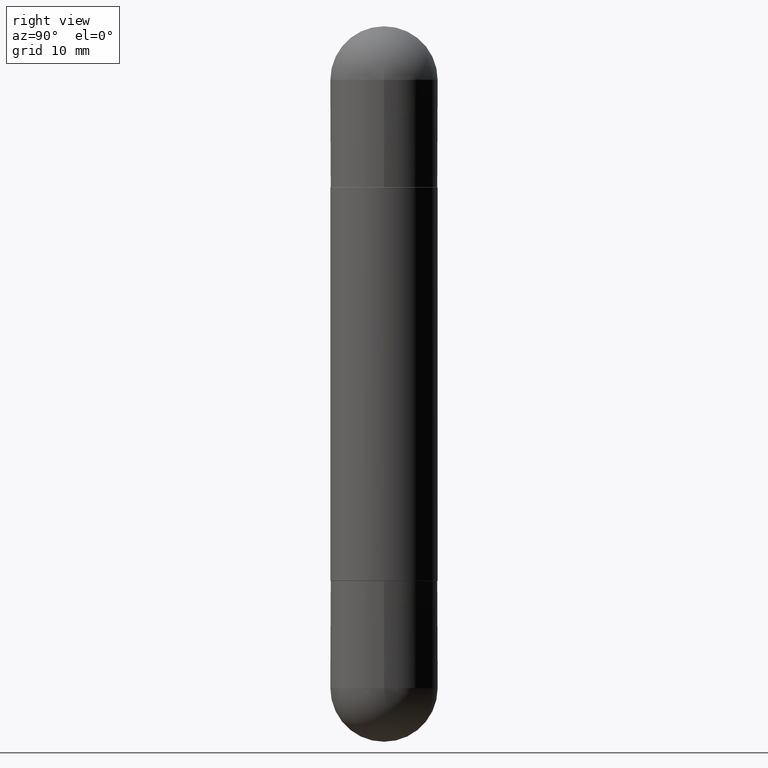
[diagram: clean part render]
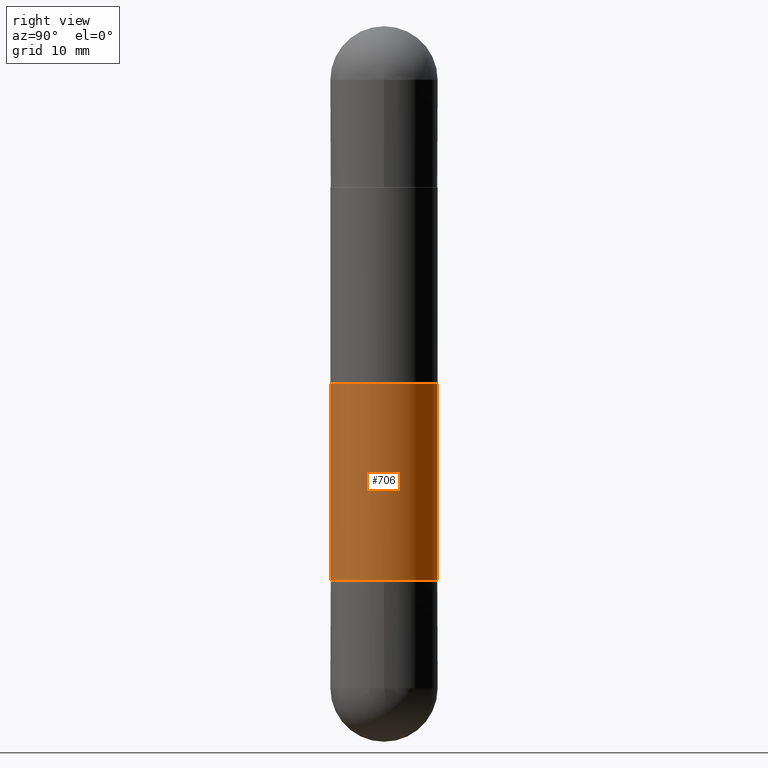
[diagram: same view with one face highlighted and labeled with its STEP entity id]
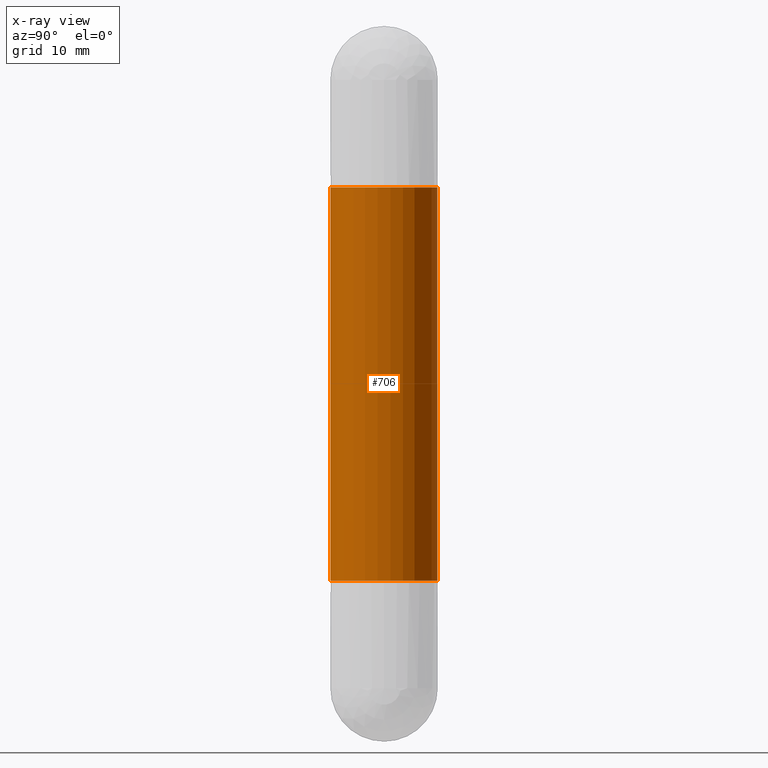
[diagram: x-ray of the same camera — body ghosted, the highlighted face saturated]
A machine part, right view. The second image highlights one B-rep face of the part: STEP entity #706.
The next image is the same camera in x-ray: the body ghosted, the highlighted face saturated — about 0% of this face is hidden behind the body in this view.
In plain terms, the highlighted cylindrical surface (partial cylindrical patch) has radius 4.7625 mm, axis along (-0, 0, -1).
Its self-contained STEP definition (entity closure, byte-faithful):
#68 = DIRECTION ( 'NONE',  ( -2.446135509155562374E-29, 3.490526582243119048E-15, -1.000000000000000000 ) ) ;
#99 = CARTESIAN_POINT ( 'NONE',  ( -1.309305502066128860E-15, -0.1875000000000069389, -0.5630000000000014992 ) ) ;
#188 = VERTEX_POINT ( 'NONE', #488 ) ;
#190 = DIRECTION ( 'NONE',  ( -2.446135509155562374E-29, 3.490526582243119048E-15, -1.000000000000000000 ) ) ;
#205 = AXIS2_PLACEMENT_3D ( 'NONE', #231, #603, #296 ) ;
#211 = ORIENTED_EDGE ( 'NONE', *, *, #542, .F. ) ;
#215 = CIRCLE ( 'NONE', #716, 0.1875000000000002220 ) ;
#231 = CARTESIAN_POINT ( 'NONE',  ( 4.738164481234324369E-29, -6.761149989804920839E-15, -1.936999999999999833 ) ) ;
#232 = EDGE_CURVE ( 'NONE', #577, #704, #215, .T. ) ;
#236 = DIRECTION ( 'NONE',  ( -2.446135509155562374E-29, 3.490526582243119048E-15, -1.000000000000000000 ) ) ;
#274 = ORIENTED_EDGE ( 'NONE', *, *, #680, .T. ) ;
#296 = DIRECTION ( 'NONE',  ( -6.982962677686265922E-15, -1.000000000000000000, 2.913971193241877216E-15 ) ) ;
#312 = CARTESIAN_POINT ( 'NONE',  ( 1.286343374582210880E-15, 0.1874999999999935052, -0.5630000000000001670 ) ) ;
#370 = CIRCLE ( 'NONE', #205, 0.1875000000000002220 ) ;
#382 = VECTOR ( 'NONE', #190, 39.37007874015748143 ) ;
#426 = CARTESIAN_POINT ( 'NONE',  ( 0.000000000000000000, 0.000000000000000000, -2.500000000000000444 ) ) ;
#428 = CARTESIAN_POINT ( 'NONE',  ( 1.286343374582193722E-15, 0.1874999999999934497, -1.937000000000000499 ) ) ;
#471 = FACE_OUTER_BOUND ( 'NONE', #663, .T. ) ;
#474 = CYLINDRICAL_SURFACE ( 'NONE', #605, 0.1875000000000001110 ) ;
#478 = VERTEX_POINT ( 'NONE', #428 ) ;
#479 = DIRECTION ( 'NONE',  ( -6.982962677686266711E-15, -1.000000000000000000, -2.913971193241879189E-15 ) ) ;
#488 = CARTESIAN_POINT ( 'NONE',  ( -1.309305502066129254E-15, -0.1875000000000069944, -1.936999999999999389 ) ) ;
#528 = LINE ( 'NONE', #772, #709 ) ;
#542 = EDGE_CURVE ( 'NONE', #704, #478, #555, .T. ) ;
#554 = CARTESIAN_POINT ( 'NONE',  ( 4.738164481234324369E-29, -6.761149989804920839E-15, -0.5630000000000008331 ) ) ;
#555 = LINE ( 'NONE', #741, #382 ) ;
#557 = ORIENTED_EDGE ( 'NONE', *, *, #232, .F. ) ;
#577 = VERTEX_POINT ( 'NONE', #99 ) ;
#603 = DIRECTION ( 'NONE',  ( -2.446135509155562374E-29, 3.490526582243119048E-15, 1.000000000000000000 ) ) ;
#605 = AXIS2_PLACEMENT_3D ( 'NONE', #426, #236, #479 ) ;
#663 = EDGE_LOOP ( 'NONE', ( #211, #557, #274, #798 ) ) ;
#676 = DIRECTION ( 'NONE',  ( -6.982962677686265922E-15, -1.000000000000000000, -3.642463991552347014E-15 ) ) ;
#680 = EDGE_CURVE ( 'NONE', #577, #188, #528, .T. ) ;
#704 = VERTEX_POINT ( 'NONE', #312 ) ;
#706 = ADVANCED_FACE ( 'NONE', ( #471 ), #474, .T. ) ;
#709 = VECTOR ( 'NONE', #68, 39.37007874015748143 ) ;
#715 = EDGE_CURVE ( 'NONE', #188, #478, #370, .T. ) ;
#716 = AXIS2_PLACEMENT_3D ( 'NONE', #554, #789, #676 ) ;
#741 = CARTESIAN_POINT ( 'NONE',  ( 1.286343374582162760E-15, 0.1875000000000001110, -2.500000000000000000 ) ) ;
#772 = CARTESIAN_POINT ( 'NONE',  ( -1.309305502066175797E-15, -0.1875000000000001110, -2.500000000000001332 ) ) ;
#789 = DIRECTION ( 'NONE',  ( 2.446135509155562374E-29, -3.490526582243119048E-15, 1.000000000000000000 ) ) ;
#798 = ORIENTED_EDGE ( 'NONE', *, *, #715, .T. ) ;